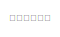
[diagram: root canvas - part 1/3, top center region]
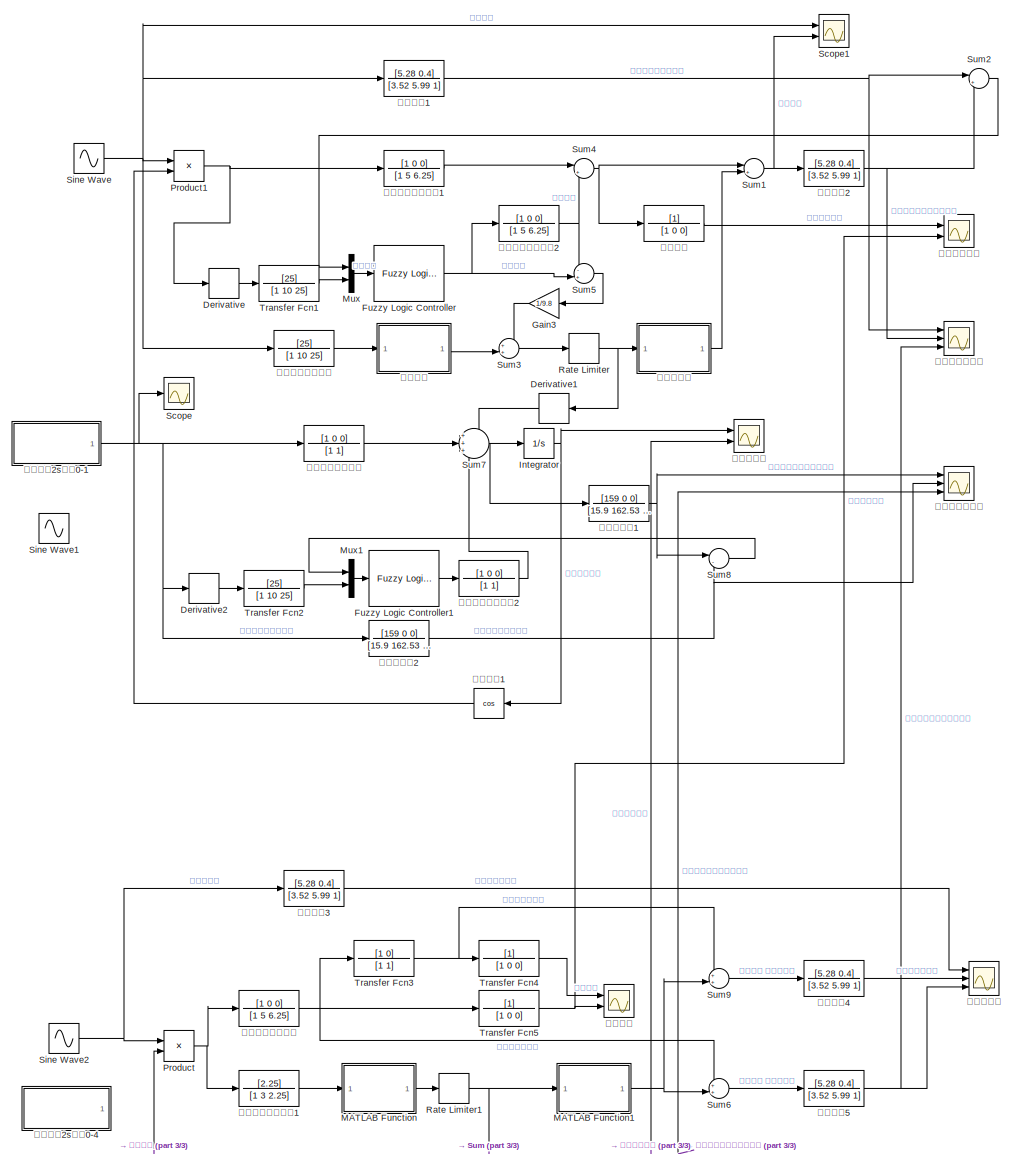
[diagram: root canvas - part 2/3, most of the canvas]
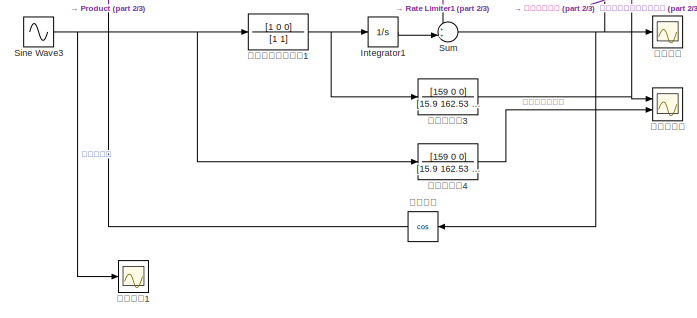
[diagram: root canvas - part 3/3, bottom center region]
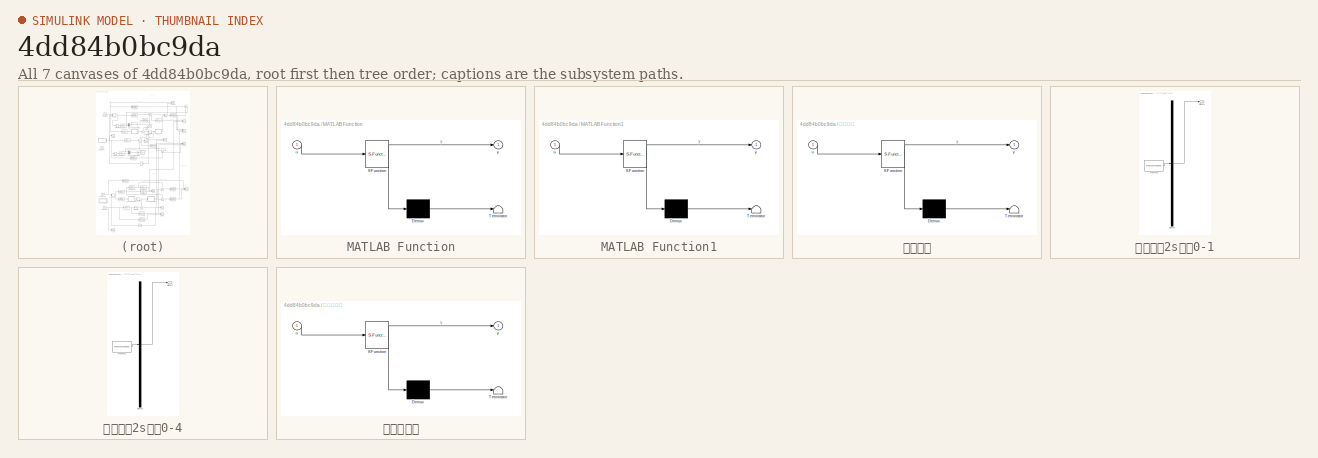
[diagram: thumbnail index - all 7 canvases of the model, root first then tree order]
MODEL slx_4dd84b0bc9da
KIND model
CONFIG AbsTol = auto
CONFIG EnableMultiTasking = off
CONFIG FixedStep = auto
CONFIG MaxStep = auto
CONFIG MinStep = auto
CONFIG RelTol = 1e-3
CONFIG SampleTimeConstraint = Unconstrained
CONFIG Solver = VariableStepAuto
CONFIG SolverName = VariableStepAuto
CONFIG StartTime = 0.0
CONFIG StopTime = 20
BLOCK [Derivative] Derivative
BLOCK [Derivative] Derivative1
BLOCK [Derivative] Derivative2
BLOCK [Reference] Fuzzy Logic Controller  REF=fuzblock/Fuzzy Logic   (lib defined in mdl_858b3b3e7478)
Controller
  Ports = [1, 1]
  SourceBlock = fuzblock/Fuzzy Logic \nController
  SourceProductBaseCode = FL
  SourceProductName = Fuzzy Logic Toolbox
  SourceType = Fuzzy Inference System
BLOCK [Reference] Fuzzy Logic Controller1  REF=fuzblock/Fuzzy Logic   (lib defined in mdl_858b3b3e7478)
Controller
  Ports = [1, 1]
  SourceBlock = fuzblock/Fuzzy Logic \nController
  SourceProductBaseCode = FL
  SourceProductName = Fuzzy Logic Toolbox
  SourceType = Fuzzy Inference System
BLOCK [Gain] Gain3
  Gain = 1/9.8
  OutDataTypeStr = Inherit: Inherit via internal rule
  ParamDataTypeStr = Inherit: Inherit via internal rule
  SaturateOnIntegerOverflow = off
BLOCK [Integrator] Integrator
  Ports = [1, 1]
BLOCK [Integrator] Integrator1
  Ports = [1, 1]
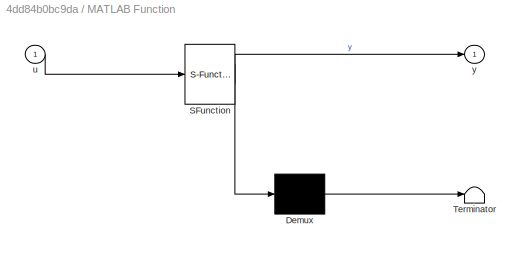
BLOCK [SubSystem] MATLAB Function
  ErrorFcn = Stateflow.Translate.translate
  PermitHierarchicalResolution = ExplicitOnly
  Ports = [1, 1]
  RequestExecContextInheritance = off
  SFBlockType = MATLAB Function
  TreatAsAtomicUnit = on
BLOCK [Demux] MATLAB Function/ Demux 
  Outputs = 1
  Ports = [1, 1]
BLOCK [S-Function] MATLAB Function/ SFunction 
  EnableBusSupport = on
  FunctionName = sf_sfun
  PortCounts = [1 2]
  Ports = [1, 2]
  SFcnIsStateOwnerBlock = off
  SFunctionDeploymentMode = off
  Tag = Stateflow S-Function washout5useful 3
BLOCK [Terminator] MATLAB Function/ Terminator 
BLOCK [Inport] MATLAB Function/u
  IconDisplay = Port number
BLOCK [Outport] MATLAB Function/y
  IconDisplay = Port number
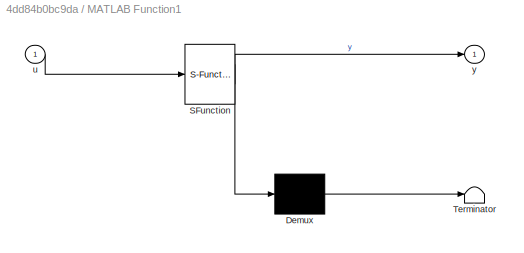
BLOCK [SubSystem] MATLAB Function1
  ErrorFcn = Stateflow.Translate.translate
  PermitHierarchicalResolution = ExplicitOnly
  Ports = [1, 1]
  RequestExecContextInheritance = off
  SFBlockType = MATLAB Function
  TreatAsAtomicUnit = on
BLOCK [Demux] MATLAB Function1/ Demux 
  Outputs = 1
  Ports = [1, 1]
BLOCK [S-Function] MATLAB Function1/ SFunction 
  EnableBusSupport = on
  FunctionName = sf_sfun
  PortCounts = [1 2]
  Ports = [1, 2]
  SFcnIsStateOwnerBlock = off
  SFunctionDeploymentMode = off
  Tag = Stateflow S-Function washout5useful 4
BLOCK [Terminator] MATLAB Function1/ Terminator 
BLOCK [Inport] MATLAB Function1/u
  IconDisplay = Port number
BLOCK [Outport] MATLAB Function1/y
  IconDisplay = Port number
BLOCK [Mux] Mux
  DisplayOption = bar
  Inputs = 2
  Ports = [2, 1]
BLOCK [Mux] Mux1
  DisplayOption = bar
  Inputs = 2
  Ports = [2, 1]
BLOCK [Product] Product
  InputSameDT = off
  OutDataTypeStr = Inherit: Inherit via internal rule
  Ports = [2, 1]
  RndMeth = Floor
  SaturateOnIntegerOverflow = off
BLOCK [Product] Product1
  InputSameDT = off
  OutDataTypeStr = Inherit: Inherit via internal rule
  Ports = [2, 1]
  RndMeth = Floor
  SaturateOnIntegerOverflow = off
BLOCK [RateLimiter] Rate Limiter
  FallingSlewLimit = -0.0628
  RisingSlewLimit = 0.0628
  SampleTimeMode = inherited
BLOCK [RateLimiter] Rate Limiter1
  FallingSlewLimit = -0.0628
  RisingSlewLimit = 0.0628
  SampleTimeMode = inherited
BLOCK [Scope] Scope
  Floating = off
  NumInputPorts = 1
  Ports = [1]
  ScopeSpecificationString = Simulink.scopes.TimeScopeBlockCfg('CurrentConfiguration', extmgr.ConfigurationSet(extmgr.Configuration('Core','General UI',true,'FigureColor',[1 1 1]),extmgr.Configuration('Core','Source UI',true),extmgr.Configuration('Sources','WiredSimulink',true,'DataLoggingVariableName','ScopeData6'),extmgr.Configuration('Visuals','Time Domain',true,'SerializedDisplays',{struct('MinYLimReal','-0.125','MaxYLimR...<+1543ch>
BLOCK [Scope] Scope1
  Floating = off
  NumInputPorts = 2
  Ports = [2]
  ScopeSpecificationString = Simulink.scopes.TimeScopeBlockCfg('CurrentConfiguration', extmgr.ConfigurationSet(extmgr.Configuration('Core','General UI',true),extmgr.Configuration('Core','Source UI',true),extmgr.Configuration('Sources','WiredSimulink',true,'DataLoggingVariableName','ScopeData2'),extmgr.Configuration('Visuals','Time Domain',true,'SerializedDisplays',{struct('MinYLimReal','-0.14738','MaxYLimReal','1.32641','YLab...<+1383ch>
BLOCK [Sin] Sine Wave
  Ports = [0, 1]
  SampleTime = 0
BLOCK [Sin] Sine Wave1
  Ports = [0, 1]
  SampleTime = 0
BLOCK [Sin] Sine Wave2
  Ports = [0, 1]
  SampleTime = 0
BLOCK [Sin] Sine Wave3
  Ports = [0, 1]
  SampleTime = 0
BLOCK [Sum] Sum
  IconShape = round
  InputSameDT = off
  Inputs = ++|
  OutDataTypeStr = Inherit: Inherit via internal rule
  Ports = [2, 1]
  SaturateOnIntegerOverflow = off
BLOCK [Sum] Sum1
  IconShape = round
  InputSameDT = off
  Inputs = |++
  OutDataTypeStr = Inherit: Inherit via internal rule
  Ports = [2, 1]
  SaturateOnIntegerOverflow = off
BLOCK [Sum] Sum2
  IconShape = round
  InputSameDT = off
  Inputs = |+-
  OutDataTypeStr = Inherit: Inherit via internal rule
  Ports = [2, 1]
  SaturateOnIntegerOverflow = off
BLOCK [Sum] Sum3
  IconShape = round
  InputSameDT = off
  Inputs = ++|
  OutDataTypeStr = Inherit: Inherit via internal rule
  Ports = [2, 1]
  SaturateOnIntegerOverflow = off
BLOCK [Sum] Sum4
  IconShape = round
  InputSameDT = off
  Inputs = |++
  OutDataTypeStr = Inherit: Inherit via internal rule
  Ports = [2, 1]
  SaturateOnIntegerOverflow = off
BLOCK [Sum] Sum5
  IconShape = round
  InputSameDT = off
  Inputs = -+|
  OutDataTypeStr = Inherit: Inherit via internal rule
  Ports = [2, 1]
  SaturateOnIntegerOverflow = off
BLOCK [Sum] Sum6
  IconShape = round
  InputSameDT = off
  Inputs = ++|
  OutDataTypeStr = Inherit: Inherit via internal rule
  Ports = [2, 1]
  SaturateOnIntegerOverflow = off
BLOCK [Sum] Sum7
  IconShape = round
  InputSameDT = off
  Inputs = +++
  OutDataTypeStr = Inherit: Inherit via internal rule
  Ports = [3, 1]
  SaturateOnIntegerOverflow = off
BLOCK [Sum] Sum8
  IconShape = round
  InputSameDT = off
  Inputs = |-+
  OutDataTypeStr = Inherit: Inherit via internal rule
  Ports = [2, 1]
  SaturateOnIntegerOverflow = off
BLOCK [Sum] Sum9
  IconShape = round
  InputSameDT = off
  Inputs = ++|
  OutDataTypeStr = Inherit: Inherit via internal rule
  Ports = [2, 1]
  SaturateOnIntegerOverflow = off
BLOCK [TransferFcn] Transfer Fcn1
  Denominator = [1 10 25]
  Numerator = [25]
BLOCK [TransferFcn] Transfer Fcn2
  Denominator = [1 10 25]
  Numerator = [25]
BLOCK [TransferFcn] Transfer Fcn3
  Denominator = [1 1]
  Numerator = [1 0]
BLOCK [TransferFcn] Transfer Fcn4
  Denominator = [1 0 0]
BLOCK [TransferFcn] Transfer Fcn5
  Denominator = [1 0 0]
BLOCK [TransferFcn] 二次积分
  Denominator = [1 0 0]
BLOCK [TransferFcn] 低通加速度滤波器
  Denominator = [1 10 25]
  Numerator = [25]
BLOCK [TransferFcn] 低通加速度滤波器1
  Denominator = [1 3 2.25]
  Numerator = [2.25]
BLOCK [SubSystem] 倾斜协调
  ErrorFcn = Stateflow.Translate.translate
  PermitHierarchicalResolution = ExplicitOnly
  Ports = [1, 1]
  RequestExecContextInheritance = off
  SFBlockType = MATLAB Function
  TreatAsAtomicUnit = on
BLOCK [Demux] 倾斜协调/ Demux 
  Outputs = 1
  Ports = [1, 1]
BLOCK [S-Function] 倾斜协调/ SFunction 
  EnableBusSupport = on
  FunctionName = sf_sfun
  PortCounts = [1 2]
  Ports = [1, 2]
  SFcnIsStateOwnerBlock = off
  SFunctionDeploymentMode = off
  Tag = Stateflow S-Function washout5useful 2
BLOCK [Terminator] 倾斜协调/ Terminator 
BLOCK [Inport] 倾斜协调/u
  IconDisplay = Port number
BLOCK [Outport] 倾斜协调/y
  IconDisplay = Port number
BLOCK [Scope] 前庭感受加速度
  Floating = off
  NumInputPorts = 3
  Ports = [3]
  ScopeSpecificationString = Simulink.scopes.TimeScopeBlockCfg('CurrentConfiguration', extmgr.ConfigurationSet(extmgr.Configuration('Core','General UI',true,'FigureColor',[1 1 1]),extmgr.Configuration('Core','Source UI',true),extmgr.Configuration('Sources','WiredSimulink',true),extmgr.Configuration('Visuals','Time Domain',true,'SerializedDisplays',{struct('MinYLimReal','-1.06919','MaxYLimReal','1.01526','YLabelReal','前庭感受加速度'...<+1826ch>
BLOCK [Scope] 前庭感受角速度
  Floating = off
  NumInputPorts = 3
  Ports = [3]
  ScopeSpecificationString = Simulink.scopes.TimeScopeBlockCfg('CurrentConfiguration', extmgr.ConfigurationSet(extmgr.Configuration('Core','General UI',true),extmgr.Configuration('Core','Source UI',true),extmgr.Configuration('Sources','WiredSimulink',true,'DataLoggingVariableName','ScopeData2'),extmgr.Configuration('Visuals','Time Domain',true,'SerializedDisplays',{struct('MinYLimReal','-0.65973','MaxYLimReal','1.03264','YLab...<+1436ch>
BLOCK [SubSystem] 加速度在2s内从0-1
  ClipboardFcn = sigbuilder_block('clipboard');
  CloseFcn = sigbuilder_block('close');
  ContinueFcn = sigbuilder_block('continue');
  CopyFcn = sigbuilder_block('copy');
  DeleteFcn = sigbuilder_block('delete');
  LoadFcn = sigbuilder_block('load');
  MaskHideContents = on
  ModelCloseFcn = sigbuilder_block('modelClose');
  NameChangeFcn = sigbuilder_block('namechange');
  OpenFcn = sigbuilder_block('open',[199.875 127.5 550.5 364.5 ]);
  PauseFcn = sigbuilder_block('pause');
  Ports = [0, 1]
  PreSaveFcn = sigbuilder_block('preSave');
  RequestExecContextInheritance = off
  StartFcn = sigbuilder_block('start');
  StopFcn = sigbuilder_block('stop');
  Tag = STV Subsys
BLOCK [Demux] 加速度在2s内从0-1/Demux
  Outputs = 1
  Ports = [1, 1]
  Tag = STV Demux
BLOCK [FromWorkspace] 加速度在2s内从0-1/FromWs
  SampleTime = 0
  Tag = STV FromWs
  VariableName = tuvar
  ZeroCross = on
BLOCK [Outport] 加速度在2s内从0-1/Signal 1
  IconDisplay = Port number
  Tag = STV Outport
BLOCK [SubSystem] 加速度在2s内从0-4
  ClipboardFcn = sigbuilder_block('clipboard');
  CloseFcn = sigbuilder_block('close');
  ContinueFcn = sigbuilder_block('continue');
  CopyFcn = sigbuilder_block('copy');
  DeleteFcn = sigbuilder_block('delete');
  LoadFcn = sigbuilder_block('load');
  MaskHideContents = on
  ModelCloseFcn = sigbuilder_block('modelClose');
  NameChangeFcn = sigbuilder_block('namechange');
  OpenFcn = sigbuilder_block('open',[199.875 127.5 550.5 364.5 ]);
  PauseFcn = sigbuilder_block('pause');
  Ports = [0, 1]
  PreSaveFcn = sigbuilder_block('preSave');
  RequestExecContextInheritance = off
  StartFcn = sigbuilder_block('start');
  StopFcn = sigbuilder_block('stop');
  Tag = STV Subsys
BLOCK [Demux] 加速度在2s内从0-4/Demux
  Outputs = 1
  Ports = [1, 1]
  Tag = STV Demux
BLOCK [FromWorkspace] 加速度在2s内从0-4/FromWs
  SampleTime = 0
  Tag = STV FromWs
  VariableName = tuvar
  ZeroCross = on
BLOCK [Outport] 加速度在2s内从0-4/Signal 1
  IconDisplay = Port number
  Tag = STV Outport
BLOCK [TransferFcn] 半规管模型1
  Denominator = [15.9 162.53 35.4 1]
  Numerator = [159 0 0]
BLOCK [TransferFcn] 半规管模型2
  Denominator = [15.9 162.53 35.4 1]
  Numerator = [159 0 0]
BLOCK [TransferFcn] 半规管模型3
  Denominator = [15.9 162.53 35.4 1]
  Numerator = [159 0 0]
BLOCK [TransferFcn] 半规管模型4
  Denominator = [15.9 162.53 35.4 1]
  Numerator = [159 0 0]
BLOCK [SubSystem] 反倾斜协调
  ErrorFcn = Stateflow.Translate.translate
  PermitHierarchicalResolution = ExplicitOnly
  Ports = [1, 1]
  RequestExecContextInheritance = off
  SFBlockType = MATLAB Function
  TreatAsAtomicUnit = on
BLOCK [Demux] 反倾斜协调/ Demux 
  Outputs = 1
  Ports = [1, 1]
BLOCK [S-Function] 反倾斜协调/ SFunction 
  EnableBusSupport = on
  FunctionName = sf_sfun
  PortCounts = [1 2]
  Ports = [1, 2]
  SFcnIsStateOwnerBlock = off
  SFunctionDeploymentMode = off
  Tag = Stateflow S-Function washout5useful 1
BLOCK [Terminator] 反倾斜协调/ Terminator 
BLOCK [Inport] 反倾斜协调/u
  IconDisplay = Port number
BLOCK [Outport] 反倾斜协调/y
  IconDisplay = Port number
BLOCK [Trigonometry] 坐标转换
  Operator = cos
  Ports = [1, 1]
BLOCK [Trigonometry] 坐标转换1
  Operator = cos
  Ports = [1, 1]
BLOCK [Scope] 平台位移
  Floating = off
  NumInputPorts = 2
  Ports = [2]
  ScopeSpecificationString = Simulink.scopes.TimeScopeBlockCfg('CurrentConfiguration', extmgr.ConfigurationSet(extmgr.Configuration('Core','General UI',true,'FigureColor',[1 1 1]),extmgr.Configuration('Core','Source UI',true),extmgr.Configuration('Sources','WiredSimulink',true,'DataLoggingVariableName','ScopeData1'),extmgr.Configuration('Visuals','Time Domain',true,'SerializedDisplays',{struct('MinYLimReal','-0.09856','MaxYLi...<+1572ch>
BLOCK [Scope] 平台角度
  Floating = off
  NumInputPorts = 1
  Ports = [1]
  ScopeSpecificationString = Simulink.scopes.TimeScopeBlockCfg('CurrentConfiguration', extmgr.ConfigurationSet(extmgr.Configuration('Core','General UI',true,'FigureColor',[1 1 1]),extmgr.Configuration('Core','Source UI',true),extmgr.Configuration('Sources','WiredSimulink',true,'DataLoggingVariableName','ScopeData2'),extmgr.Configuration('Visuals','Time Domain',true,'SerializedDisplays',{struct('MinYLimReal','-0.38657','MaxYLi...<+1515ch>
BLOCK [Scope] 平台角度1
  Floating = off
  NumInputPorts = 1
  Ports = [1]
  ScopeSpecificationString = Simulink.scopes.TimeScopeBlockCfg('CurrentConfiguration', extmgr.ConfigurationSet(extmgr.Configuration('Core','General UI',true,'FigureColor',[1 1 1]),extmgr.Configuration('Core','Source UI',true),extmgr.Configuration('Sources','WiredSimulink',true,'DataLoggingVariableName','ScopeData3'),extmgr.Configuration('Visuals','Time Domain',true,'SerializedDisplays',{struct('MinYLimReal','-0.13125','MaxYLi...<+1524ch>
BLOCK [Scope] 感知加速度
  Floating = off
  NumInputPorts = 3
  Ports = [3]
  ScopeSpecificationString = Simulink.scopes.TimeScopeBlockCfg('CurrentConfiguration', extmgr.ConfigurationSet(extmgr.Configuration('Core','General UI',true,'FigureColor',[1 1 1]),extmgr.Configuration('Core','Source UI',true),extmgr.Configuration('Sources','WiredSimulink',true,'DataLoggingVariableName','ScopeData4'),extmgr.Configuration('Visuals','Time Domain',true,'SerializedDisplays',{struct('MinYLimReal','-0.36132','MaxYLi...<+1870ch>
BLOCK [Scope] 感知角速度
  Floating = off
  NumInputPorts = 2
  Ports = [2]
  ScopeSpecificationString = Simulink.scopes.TimeScopeBlockCfg('CurrentConfiguration', extmgr.ConfigurationSet(extmgr.Configuration('Core','General UI',true,'FigureColor',[1 1 1]),extmgr.Configuration('Core','Source UI',true),extmgr.Configuration('Sources','WiredSimulink',true,'DataLoggingVariableName','ScopeData5'),extmgr.Configuration('Visuals','Time Domain',true,'SerializedDisplays',{struct('MinYLimReal','-0.83845','MaxYLi...<+1612ch>
BLOCK [Scope] 模糊洗出位移
  Floating = off
  NumInputPorts = 2
  Ports = [2]
  ScopeSpecificationString = Simulink.scopes.TimeScopeBlockCfg('CurrentConfiguration', extmgr.ConfigurationSet(extmgr.Configuration('Core','General UI',true,'FigureColor',[1 1 1]),extmgr.Configuration('Core','Source UI',true),extmgr.Configuration('Sources','WiredSimulink',true,'DataLoggingVariableName','ScopeData1'),extmgr.Configuration('Visuals','Time Domain',true,'SerializedDisplays',{struct('MinYLimReal','-0.37789','MaxYLi...<+1648ch>
BLOCK [TransferFcn] 耳石模型1
  Denominator = [3.52 5.99 1]
  Numerator = [5.28 0.4]
BLOCK [TransferFcn] 耳石模型2
  Denominator = [3.52 5.99 1]
  Numerator = [5.28 0.4]
BLOCK [TransferFcn] 耳石模型3
  Denominator = [3.52 5.99 1]
  Numerator = [5.28 0.4]
BLOCK [TransferFcn] 耳石模型4
  Denominator = [3.52 5.99 1]
  Numerator = [5.28 0.4]
BLOCK [TransferFcn] 耳石模型5
  Denominator = [3.52 5.99 1]
  Numerator = [5.28 0.4]
BLOCK [Scope] 输出角位移 
  Floating = off
  NumInputPorts = 2
  Ports = [2]
  ScopeSpecificationString = Simulink.scopes.TimeScopeBlockCfg('CurrentConfiguration', extmgr.ConfigurationSet(extmgr.Configuration('Core','General UI',true,'FigureColor',[1 1 1]),extmgr.Configuration('Core','Source UI',true),extmgr.Configuration('Sources','WiredSimulink',true,'DataLoggingVariableName','ScopeData3'),extmgr.Configuration('Visuals','Time Domain',true,'SerializedDisplays',{struct('MinYLimReal','-0.68073','MaxYLi...<+1649ch>
BLOCK [TransferFcn] 高通加速度滤波器
  Denominator = [1 5 6.25]
  Numerator = [1 0 0]
BLOCK [TransferFcn] 高通加速度滤波器1
  Denominator = [1 5 6.25]
  Numerator = [1 0 0]
BLOCK [TransferFcn] 高通加速度滤波器2
  Denominator = [1 5 6.25]
  Numerator = [1 0 0]
BLOCK [TransferFcn] 高通角速度滤波器
  Numerator = [1 0 0]
BLOCK [TransferFcn] 高通角速度滤波器1
  Numerator = [1 0 0]
BLOCK [TransferFcn] 高通角速度滤波器2
  Numerator = [1 0 0]
ANNOTATION (root): 模糊洗出算法
LINE Derivative1:1 -> Sum7:1
LINE Derivative2:1 -> Transfer Fcn2:1
LINE Derivative:1 -> Transfer Fcn1:1
LINE Fuzzy Logic Controller1:1 -> 高通角速度滤波器2:1
NET Fuzzy Logic Controller:1 -> Sum5:2, 高通加速度滤波器2:1
LINE Gain3:1 -> Sum3:1
LINE Integrator1:1 -> Sum:2
NET Integrator:1 -> 坐标转换1:1, 输出角位移 :1
NET MATLAB Function1:1 -> Sum6:2, Sum9:2
LINE MATLAB Function:1 -> Rate Limiter1:1
LINE Mux1:1 -> Fuzzy Logic Controller1:1
LINE Mux:1 -> Fuzzy Logic Controller:1
NET Product1:1 -> Derivative:1, 高通加速度滤波器1:1
NET Product:1 -> 低通加速度滤波器1:1, 高通加速度滤波器:1
NET Rate Limiter1:1 -> MATLAB Function1:1, Sum:1
NET Rate Limiter:1 -> Derivative1:1, 反倾斜协调:1
NET Sine Wave2:1 -> Product:1, 耳石模型3:1
NET Sine Wave3:1 -> 半规管模型4:1, 平台角度1:1, 高通角速度滤波器1:1
NET Sine Wave:1 -> Product1:1, Scope1:1, 低通加速度滤波器:1, 耳石模型1:1
NET Sum1:1 -> Scope1:2, 耳石模型2:1
LINE Sum2:1 -> Mux:1
LINE Sum3:1 -> Rate Limiter:1
NET Sum4:1 -> Sum1:1, 二次积分:1
LINE Sum5:1 -> Gain3:1
LINE Sum6:1 -> 耳石模型5:1
NET Sum7:1 -> Integrator:1, 半规管模型1:1
LINE Sum8:1 -> Mux1:1
LINE Sum9:1 -> 耳石模型4:1
NET Sum:1 -> 坐标转换:1, 平台角度:1, 输出角位移 :2
LINE Transfer Fcn1:1 -> Mux:2
LINE Transfer Fcn2:1 -> Mux1:2
NET Transfer Fcn3:1 -> Sum9:1, Transfer Fcn4:1
LINE Transfer Fcn4:1 -> 平台位移:1
NET Transfer Fcn5:1 -> 平台位移:2, 模糊洗出位移:2
LINE 二次积分:1 -> 模糊洗出位移:1
LINE 低通加速度滤波器1:1 -> MATLAB Function:1
LINE 低通加速度滤波器:1 -> 倾斜协调:1
LINE 倾斜协调:1 -> Sum3:2
NET 加速度在2s内从0-1:1 -> Derivative2:1, Scope:1, 半规管模型2:1, 高通角速度滤波器:1
NET 半规管模型1:1 -> Sum8:1, 前庭感受角速度:1
NET 半规管模型2:1 -> Sum8:2, 前庭感受角速度:2
NET 半规管模型3:1 -> 前庭感受角速度:3, 感知角速度:1
LINE 半规管模型4:1 -> 感知角速度:2
LINE 反倾斜协调:1 -> Sum1:2
LINE 坐标转换1:1 -> Product1:2
LINE 坐标转换:1 -> Product:2
NET 耳石模型1:1 -> Sum2:1, 前庭感受加速度:1
NET 耳石模型2:1 -> Sum2:2, 前庭感受加速度:2
LINE 耳石模型3:1 -> 感知加速度:1
LINE 耳石模型4:1 -> 感知加速度:2
NET 耳石模型5:1 -> 前庭感受加速度:3, 感知加速度:3
LINE 高通加速度滤波器1:1 -> Sum4:1
NET 高通加速度滤波器2:1 -> Sum4:2, Sum5:1
NET 高通加速度滤波器:1 -> Sum6:1, Transfer Fcn3:1, Transfer Fcn5:1
NET 高通角速度滤波器1:1 -> Integrator1:1, 半规管模型3:1
LINE 高通角速度滤波器2:1 -> Sum7:3
LINE 高通角速度滤波器:1 -> Sum7:2
note: NET lines group one-source signal fan-out (src -> all destinations, sorted); 1:1 wires keep LINE
CHART 反倾斜协调 states=1 transitions=1
  STATE_LABEL 'eML_blk_kernel()'
  STATE_LABEL 'SCRIPT:\nfunction y = fcn(u)\ny=9.8*sin(u);\n'
CHART 倾斜协调 states=1 transitions=1
  STATE_LABEL 'eML_blk_kernel()'
  STATE_LABEL 'SCRIPT:\nfunction y = fcn(u)\ny=asin(u/9.8);\n'
CHART MATLAB Function states=1 transitions=1
  STATE_LABEL 'eML_blk_kernel()'
  STATE_LABEL 'SCRIPT:\nfunction y = fcn(u)\ny=asin(u/9.8);\n'
CHART MATLAB Function1 states=1 transitions=1
  STATE_LABEL 'eML_blk_kernel()'
  STATE_LABEL 'SCRIPT:\nfunction y = fcn(u)\ny=9.8*sin(u);\n'
